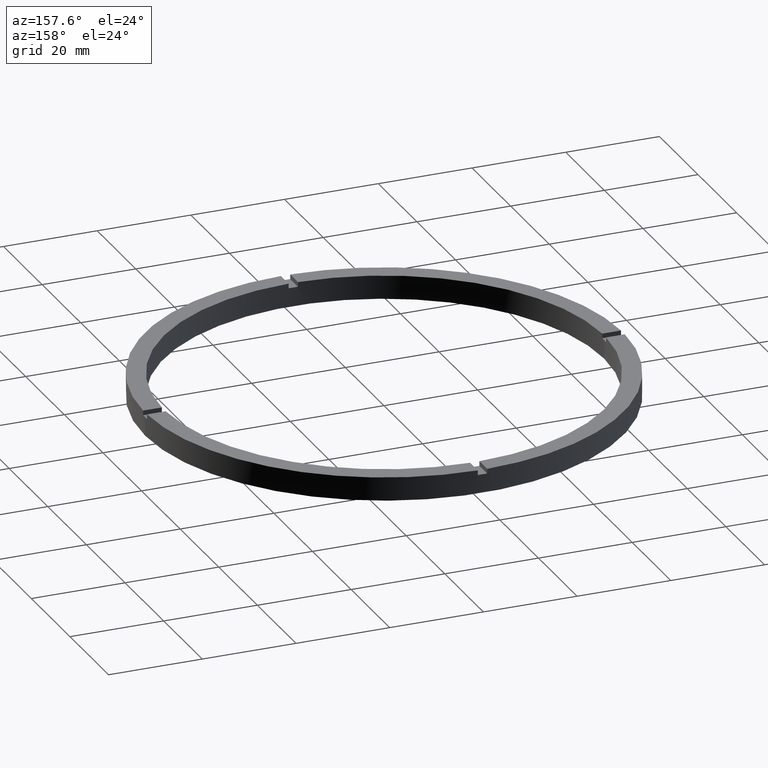
[diagram: clean part render]
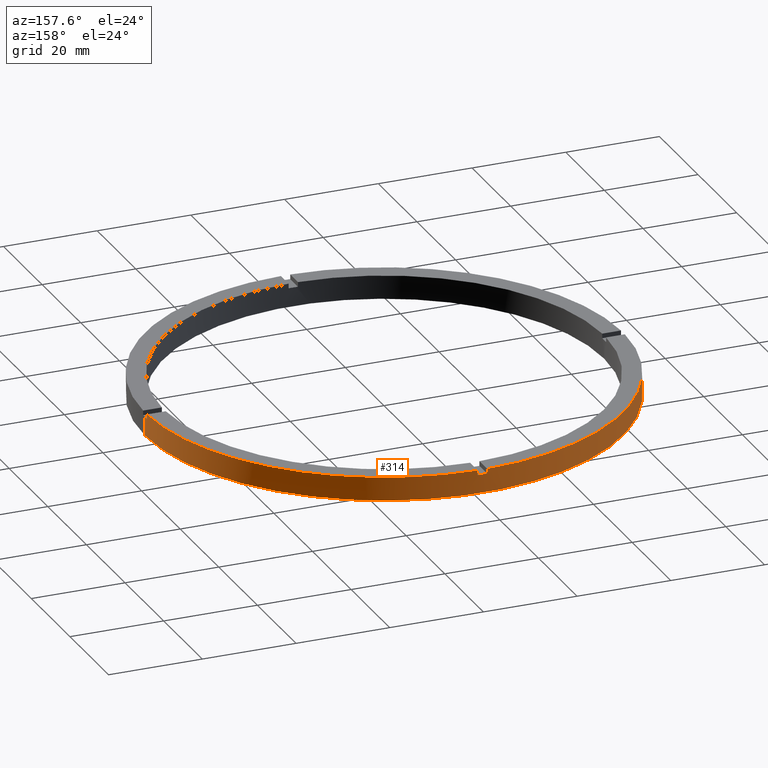
[diagram: same view with one face highlighted and labeled with its STEP entity id]
A machine part, auxiliary view. The second image highlights one B-rep face of the part: STEP entity #314.
In plain terms, the highlighted cylindrical surface (partial cylindrical patch) has radius 51 mm, axis along (-0, -0, -1).
Its self-contained STEP definition (entity closure, byte-faithful):
#11 = CARTESIAN_POINT ( 'NONE',  ( 0.9999999999999731326, 50.99019513592784136, 5.000000000000000000 ) ) ;
#16 = CARTESIAN_POINT ( 'NONE',  ( 51.00000000000000000, 6.245698675651500444E-15, 0.000000000000000000 ) ) ;
#19 = DIRECTION ( 'NONE',  ( -0.000000000000000000, -0.000000000000000000, -1.000000000000000000 ) ) ;
#47 = LINE ( 'NONE', #318, #308 ) ;
#55 = AXIS2_PLACEMENT_3D ( 'NONE', #480, #57, #442 ) ;
#57 = DIRECTION ( 'NONE',  ( 0.000000000000000000, -0.000000000000000000, 1.000000000000000000 ) ) ;
#79 = LINE ( 'NONE', #127, #346 ) ;
#82 = EDGE_CURVE ( 'NONE', #289, #136, #47, .T. ) ;
#87 = LINE ( 'NONE', #11, #586 ) ;
#90 = VECTOR ( 'NONE', #490, 1000.000000000000000 ) ;
#102 = VECTOR ( 'NONE', #215, 1000.000000000000000 ) ;
#125 = CIRCLE ( 'NONE', #237, 51.00000000000000000 ) ;
#127 = CARTESIAN_POINT ( 'NONE',  ( -50.99019513592784136, 0.9999999999999683586, 5.000000000000000000 ) ) ;
#136 = VERTEX_POINT ( 'NONE', #228 ) ;
#145 = DIRECTION ( 'NONE',  ( 0.000000000000000000, 0.000000000000000000, 1.000000000000000000 ) ) ;
#155 = DIRECTION ( 'NONE',  ( 1.000000000000000000, 0.000000000000000000, 0.000000000000000000 ) ) ;
#159 = ORIENTED_EDGE ( 'NONE', *, *, #206, .T. ) ;
#173 = ORIENTED_EDGE ( 'NONE', *, *, #457, .T. ) ;
#188 = DIRECTION ( 'NONE',  ( 1.000000000000000000, 0.000000000000000000, 0.000000000000000000 ) ) ;
#191 = CARTESIAN_POINT ( 'NONE',  ( 0.000000000000000000, 0.000000000000000000, 4.000000000000000000 ) ) ;
#192 = EDGE_LOOP ( 'NONE', ( #492, #672, #398, #416, #384, #173, #690, #277, #432, #159, #284, #563 ) ) ;
#193 = VERTEX_POINT ( 'NONE', #568 ) ;
#202 = CARTESIAN_POINT ( 'NONE',  ( 51.00000000000000000, 6.245698675651500444E-15, 5.000000000000000000 ) ) ;
#206 = EDGE_CURVE ( 'NONE', #562, #524, #87, .T. ) ;
#215 = DIRECTION ( 'NONE',  ( -0.000000000000000000, -0.000000000000000000, -1.000000000000000000 ) ) ;
#226 = DIRECTION ( 'NONE',  ( 1.000000000000000000, 0.000000000000000000, 0.000000000000000000 ) ) ;
#228 = CARTESIAN_POINT ( 'NONE',  ( -51.00000000000000000, 0.000000000000000000, 0.000000000000000000 ) ) ;
#237 = AXIS2_PLACEMENT_3D ( 'NONE', #594, #145, #771 ) ;
#238 = CARTESIAN_POINT ( 'NONE',  ( -51.00000000000000000, 0.000000000000000000, 4.000000000000000000 ) ) ;
#241 = DIRECTION ( 'NONE',  ( -0.000000000000000000, -0.000000000000000000, -1.000000000000000000 ) ) ;
#246 = VERTEX_POINT ( 'NONE', #719 ) ;
#251 = EDGE_CURVE ( 'NONE', #698, #524, #352, .T. ) ;
#263 = DIRECTION ( 'NONE',  ( -0.000000000000000000, -0.000000000000000000, -1.000000000000000000 ) ) ;
#277 = ORIENTED_EDGE ( 'NONE', *, *, #665, .T. ) ;
#281 = CARTESIAN_POINT ( 'NONE',  ( 0.9999999999999731326, 50.99019513592784136, 5.000000000000000000 ) ) ;
#284 = ORIENTED_EDGE ( 'NONE', *, *, #251, .F. ) ;
#289 = VERTEX_POINT ( 'NONE', #238 ) ;
#299 = EDGE_CURVE ( 'NONE', #550, #289, #607, .T. ) ;
#304 = AXIS2_PLACEMENT_3D ( 'NONE', #358, #574, #188 ) ;
#308 = VECTOR ( 'NONE', #19, 1000.000000000000000 ) ;
#309 = CARTESIAN_POINT ( 'NONE',  ( -50.99019513592784136, 0.9999999999999683586, 4.000000000000000000 ) ) ;
#314 = ADVANCED_FACE ( 'NONE', ( #588 ), #598, .T. ) ;
#318 = CARTESIAN_POINT ( 'NONE',  ( -51.00000000000000000, 0.000000000000000000, 5.000000000000000000 ) ) ;
#323 = DIRECTION ( 'NONE',  ( 0.000000000000000000, 0.000000000000000000, 1.000000000000000000 ) ) ;
#343 = LINE ( 'NONE', #366, #90 ) ;
#346 = VECTOR ( 'NONE', #486, 1000.000000000000000 ) ;
#350 = VECTOR ( 'NONE', #241, 1000.000000000000000 ) ;
#352 = CIRCLE ( 'NONE', #735, 51.00000000000000000 ) ;
#358 = CARTESIAN_POINT ( 'NONE',  ( 0.000000000000000000, 0.000000000000000000, 0.000000000000000000 ) ) ;
#366 = CARTESIAN_POINT ( 'NONE',  ( 50.99019513592784847, 0.9999999999998450129, 5.000000000000000000 ) ) ;
#368 = CIRCLE ( 'NONE', #55, 51.00000000000000000 ) ;
#372 = CARTESIAN_POINT ( 'NONE',  ( 0.000000000000000000, 0.000000000000000000, 4.000000000000000000 ) ) ;
#376 = EDGE_CURVE ( 'NONE', #704, #136, #593, .T. ) ;
#384 = ORIENTED_EDGE ( 'NONE', *, *, #299, .F. ) ;
#398 = ORIENTED_EDGE ( 'NONE', *, *, #376, .T. ) ;
#413 = VERTEX_POINT ( 'NONE', #518 ) ;
#416 = ORIENTED_EDGE ( 'NONE', *, *, #82, .F. ) ;
#432 = ORIENTED_EDGE ( 'NONE', *, *, #511, .F. ) ;
#442 = DIRECTION ( 'NONE',  ( 1.000000000000000000, 0.000000000000000000, 0.000000000000000000 ) ) ;
#448 = CARTESIAN_POINT ( 'NONE',  ( -50.99019513592784136, 0.9999999999999683586, 5.000000000000000000 ) ) ;
#454 = EDGE_CURVE ( 'NONE', #698, #413, #343, .T. ) ;
#457 = EDGE_CURVE ( 'NONE', #550, #501, #79, .T. ) ;
#462 = CARTESIAN_POINT ( 'NONE',  ( 50.99019513592784847, 0.9999999999998450129, 5.000000000000000000 ) ) ;
#477 = EDGE_CURVE ( 'NONE', #655, #704, #605, .T. ) ;
#480 = CARTESIAN_POINT ( 'NONE',  ( 0.000000000000000000, 0.000000000000000000, 4.000000000000000000 ) ) ;
#486 = DIRECTION ( 'NONE',  ( 0.000000000000000000, 0.000000000000000000, 1.000000000000000000 ) ) ;
#490 = DIRECTION ( 'NONE',  ( -0.000000000000000000, -0.000000000000000000, -1.000000000000000000 ) ) ;
#492 = ORIENTED_EDGE ( 'NONE', *, *, #585, .F. ) ;
#501 = VERTEX_POINT ( 'NONE', #448 ) ;
#511 = EDGE_CURVE ( 'NONE', #562, #193, #368, .T. ) ;
#513 = AXIS2_PLACEMENT_3D ( 'NONE', #372, #540, #155 ) ;
#515 = DIRECTION ( 'NONE',  ( 0.000000000000000000, 0.000000000000000000, 1.000000000000000000 ) ) ;
#518 = CARTESIAN_POINT ( 'NONE',  ( 50.99019513592784847, 0.9999999999998450129, 4.000000000000000000 ) ) ;
#524 = VERTEX_POINT ( 'NONE', #281 ) ;
#530 = CARTESIAN_POINT ( 'NONE',  ( 0.9999999999999731326, 50.99019513592784136, 4.000000000000000000 ) ) ;
#540 = DIRECTION ( 'NONE',  ( 0.000000000000000000, 0.000000000000000000, 1.000000000000000000 ) ) ;
#550 = VERTEX_POINT ( 'NONE', #309 ) ;
#552 = EDGE_CURVE ( 'NONE', #246, #501, #125, .T. ) ;
#562 = VERTEX_POINT ( 'NONE', #530 ) ;
#563 = ORIENTED_EDGE ( 'NONE', *, *, #454, .T. ) ;
#568 = CARTESIAN_POINT ( 'NONE',  ( -1.000000000000026867, 50.99019513592784136, 4.000000000000000000 ) ) ;
#574 = DIRECTION ( 'NONE',  ( 0.000000000000000000, 0.000000000000000000, 1.000000000000000000 ) ) ;
#585 = EDGE_CURVE ( 'NONE', #655, #413, #614, .T. ) ;
#586 = VECTOR ( 'NONE', #323, 1000.000000000000000 ) ;
#588 = FACE_OUTER_BOUND ( 'NONE', #192, .T. ) ;
#590 = CARTESIAN_POINT ( 'NONE',  ( 0.000000000000000000, 0.000000000000000000, 5.000000000000000000 ) ) ;
#593 = CIRCLE ( 'NONE', #304, 51.00000000000000000 ) ;
#594 = CARTESIAN_POINT ( 'NONE',  ( 0.000000000000000000, 0.000000000000000000, 5.000000000000000000 ) ) ;
#598 = CYLINDRICAL_SURFACE ( 'NONE', #712, 51.00000000000000000 ) ;
#605 = LINE ( 'NONE', #202, #350 ) ;
#607 = CIRCLE ( 'NONE', #613, 51.00000000000000000 ) ;
#613 = AXIS2_PLACEMENT_3D ( 'NONE', #191, #515, #769 ) ;
#614 = CIRCLE ( 'NONE', #513, 51.00000000000000000 ) ;
#621 = LINE ( 'NONE', #696, #102 ) ;
#655 = VERTEX_POINT ( 'NONE', #695 ) ;
#665 = EDGE_CURVE ( 'NONE', #246, #193, #621, .T. ) ;
#672 = ORIENTED_EDGE ( 'NONE', *, *, #477, .T. ) ;
#690 = ORIENTED_EDGE ( 'NONE', *, *, #552, .F. ) ;
#695 = CARTESIAN_POINT ( 'NONE',  ( 51.00000000000000000, 6.245698675651500444E-15, 4.000000000000000000 ) ) ;
#696 = CARTESIAN_POINT ( 'NONE',  ( -1.000000000000026867, 50.99019513592784136, 5.000000000000000000 ) ) ;
#698 = VERTEX_POINT ( 'NONE', #462 ) ;
#704 = VERTEX_POINT ( 'NONE', #16 ) ;
#706 = DIRECTION ( 'NONE',  ( 0.000000000000000000, 0.000000000000000000, 1.000000000000000000 ) ) ;
#711 = DIRECTION ( 'NONE',  ( -1.000000000000000000, 0.000000000000000000, 0.000000000000000000 ) ) ;
#712 = AXIS2_PLACEMENT_3D ( 'NONE', #590, #263, #711 ) ;
#719 = CARTESIAN_POINT ( 'NONE',  ( -1.000000000000026867, 50.99019513592784136, 5.000000000000000000 ) ) ;
#735 = AXIS2_PLACEMENT_3D ( 'NONE', #750, #706, #226 ) ;
#750 = CARTESIAN_POINT ( 'NONE',  ( 0.000000000000000000, 0.000000000000000000, 5.000000000000000000 ) ) ;
#769 = DIRECTION ( 'NONE',  ( 1.000000000000000000, 0.000000000000000000, 0.000000000000000000 ) ) ;
#771 = DIRECTION ( 'NONE',  ( 1.000000000000000000, 0.000000000000000000, 0.000000000000000000 ) ) ;